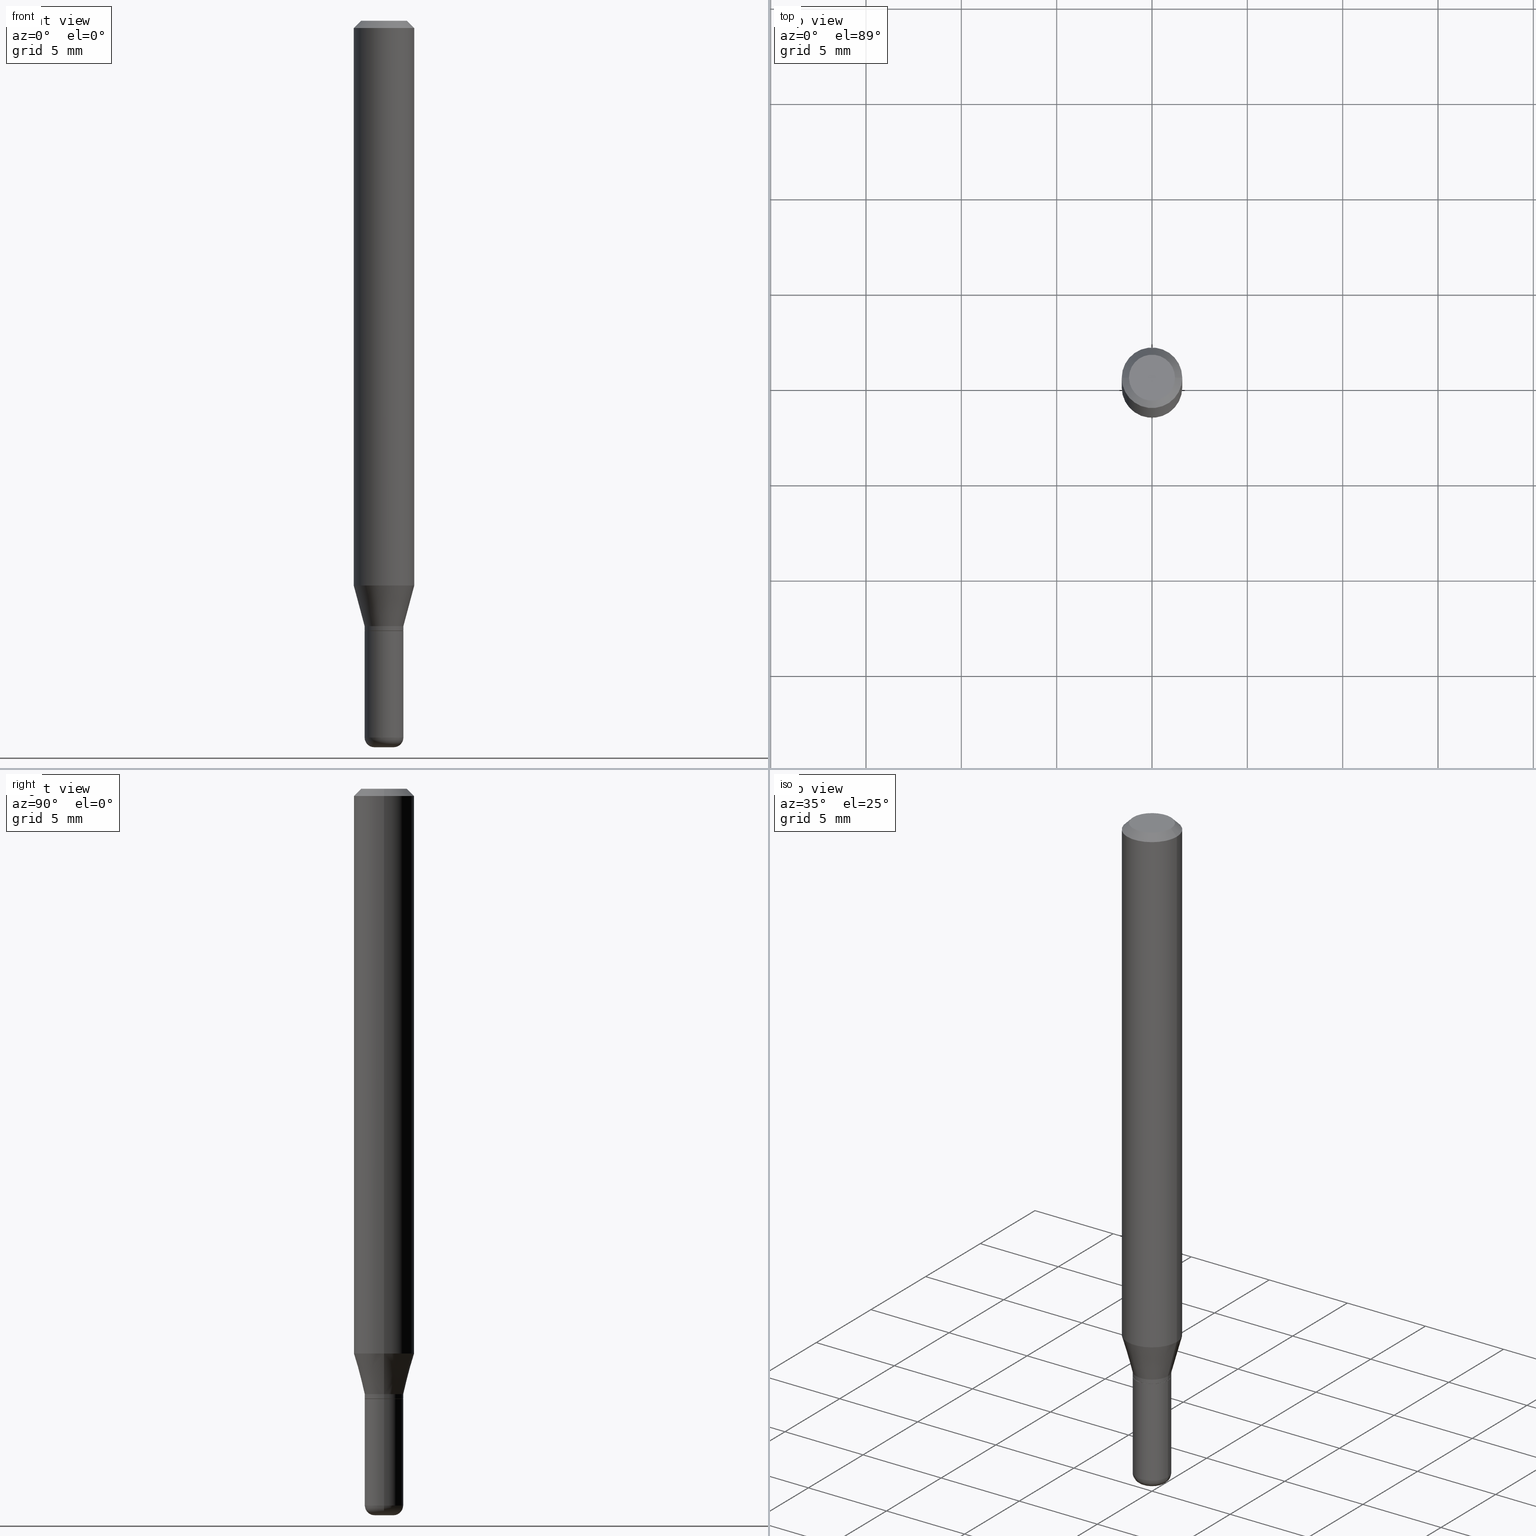
[diagram: canonical four-view strip — front | top / right | iso, engineering-drawing reading convention]
A machine part, canonical four-view strip (front | top / right | iso — engineering-drawing reading convention). The complete STEP part file that produces these views, byte-faithful:
ISO-10303-21;
HEADER;
FILE_DESCRIPTION (( 'STEP AP203' ),
    '1' );
FILE_NAME ('08566.STEP',
    '2024-02-29T19:48:53',
    ( '' ),
    ( '' ),
    'SwSTEP 2.0',
    'SolidWorks 2023',
    '' );
FILE_SCHEMA (( 'CONFIG_CONTROL_DESIGN' ));
ENDSEC;

DATA;
#1 = CARTESIAN_POINT ( 'NONE',  ( -0.04000000000000000777, 2.842170943040401296E-16, -1.967574036101962859E-30 ) ) ;
#2 = DIRECTION ( 'NONE',  ( 1.000000000000000000, 0.000000000000000000, 0.000000000000000000 ) ) ;
#3 = DIRECTION ( 'NONE',  ( -2.445468806185136597E-29, 3.491481338843145583E-15, 1.000000000000000000 ) ) ;
#4 = APPROVAL ( #107, 'UNSPECIFIED' ) ;
#5 = TOROIDAL_SURFACE ( 'NONE', #167, 0.02000000000000000042, 0.02000000000000003164 ) ;
#6 = CARTESIAN_POINT ( 'NONE',  ( 3.080067961390179490E-29, -4.397520746272941828E-15, -1.259500000000000064 ) ) ;
#7 = CARTESIAN_POINT ( 'NONE',  ( 3.668203209277704895E-29, -5.237222008264718177E-15, -1.500000000000000222 ) ) ;
#8 = VERTEX_POINT ( 'NONE', #139 ) ;
#9 = LINE ( 'NONE', #495, #205 ) ;
#10 = ORIENTED_EDGE ( 'NONE', *, *, #268, .T. ) ;
#11 = DIRECTION ( 'NONE',  ( 1.000000000000000000, -6.982962677686262766E-15, 0.000000000000000000 ) ) ;
#12 = ORIENTED_EDGE ( 'NONE', *, *, #142, .T. ) ;
#13 = EDGE_CURVE ( 'NONE', #487, #416, #460, .T. ) ;
#14 = EDGE_LOOP ( 'NONE', ( #126, #417, #117, #219 ) ) ;
#15 = CARTESIAN_POINT ( 'NONE',  ( -6.680649051745406845E-45, 9.538196290434862081E-31, 2.731847993664263218E-16 ) ) ;
#16 = DIMENSIONAL_EXPONENTS ( 1.000000000000000000, 0.000000000000000000, 0.000000000000000000, 0.000000000000000000, 0.000000000000000000, 0.000000000000000000, 0.000000000000000000 ) ;
#17 = CALENDAR_DATE ( 2024, 29, 2 ) ;
#18 = VECTOR ( 'NONE', #389, 39.37007874015748854 ) ;
#19 = CALENDAR_DATE ( 2024, 29, 2 ) ;
#20 = FACE_OUTER_BOUND ( 'NONE', #14, .T. ) ;
#21 = ORIENTED_EDGE ( 'NONE', *, *, #337, .T. ) ;
#22 = APPROVAL_DATE_TIME ( #55, #293 ) ;
#23 = CARTESIAN_POINT ( 'NONE',  ( 3.080067961390179490E-29, -4.397520746272941828E-15, -1.259500000000000064 ) ) ;
#24 = DIRECTION ( 'NONE',  ( -2.445468806185136597E-29, 3.491481338843145583E-15, 1.000000000000000000 ) ) ;
#25 = CYLINDRICAL_SURFACE ( 'NONE', #251, 0.04000000000000001471 ) ;
#26 = EDGE_LOOP ( 'NONE', ( #379, #223 ) ) ;
#27 = DIRECTION ( 'NONE',  ( -6.982962677686266711E-15, -1.000000000000000000, 3.491481338843145583E-15 ) ) ;
#28 = ORGANIZATION ( 'UNSPECIFIED', 'UNSPECIFIED', '' ) ;
#29 = EDGE_LOOP ( 'NONE', ( #42, #411, #270, #221 ) ) ;
#30 = DIRECTION ( 'NONE',  ( -2.445468806185136597E-29, 3.491481338843145583E-15, 1.000000000000000000 ) ) ;
#31 = DIRECTION ( 'NONE',  ( -2.445468806185136877E-29, 3.491481338843145188E-15, 1.000000000000000000 ) ) ;
#32 = CARTESIAN_POINT ( 'NONE',  ( 0.04000000000000001471, -4.676839253380393443E-15, -1.259500000000000064 ) ) ;
#33 = VECTOR ( 'NONE', #201, 39.37007874015748143 ) ;
#34 = CC_DESIGN_PERSON_AND_ORGANIZATION_ASSIGNMENT ( #151, #48, ( #177 ) ) ;
#35 = ADVANCED_FACE ( 'NONE', ( #98 ), #193, .T. ) ;
#36 = DIRECTION ( 'NONE',  ( 1.000000000000000000, -6.982962677686266711E-15, 4.876176775795935793E-29 ) ) ;
#37 = VERTEX_POINT ( 'NONE', #103 ) ;
#38 = EDGE_CURVE ( 'NONE', #416, #302, #231, .T. ) ;
#39 = ORIENTED_EDGE ( 'NONE', *, *, #394, .F. ) ;
#40 = AXIS2_PLACEMENT_3D ( 'NONE', #380, #83, #166 ) ;
#41 = DIRECTION ( 'NONE',  ( 1.000000000000000000, -6.982962677686266711E-15, 4.876176775795935793E-29 ) ) ;
#42 = ORIENTED_EDGE ( 'NONE', *, *, #259, .F. ) ;
#43 = FACE_OUTER_BOUND ( 'NONE', #434, .T. ) ;
#44 = CARTESIAN_POINT ( 'NONE',  ( 2.851487196488747125E-29, -4.071167994173504722E-15, -1.166028856829700366 ) ) ;
#45 = ORIENTED_EDGE ( 'NONE', *, *, #409, .T. ) ;
#46 = PERSON_AND_ORGANIZATION ( #105, #28 ) ;
#47 = ORIENTED_EDGE ( 'NONE', *, *, #101, .T. ) ;
#48 = PERSON_AND_ORGANIZATION_ROLE ( 'classification_officer' ) ;
#49 = DIRECTION ( 'NONE',  ( -2.445468806185136597E-29, 3.491481338843145583E-15, 1.000000000000000000 ) ) ;
#50 = VECTOR ( 'NONE', #54, 39.37007874015748143 ) ;
#51 = VECTOR ( 'NONE', #190, 39.37007874015748143 ) ;
#52 = CC_DESIGN_PERSON_AND_ORGANIZATION_ASSIGNMENT ( #453, #89, ( #274 ) ) ;
#53 = APPROVAL_STATUS ( 'not_yet_approved' ) ;
#54 = DIRECTION ( 'NONE',  ( -2.445468806185136877E-29, 3.491481338843145188E-15, 1.000000000000000000 ) ) ;
#55 = DATE_AND_TIME ( #19, #392 ) ;
#56 = ORIENTED_EDGE ( 'NONE', *, *, #344, .F. ) ;
#57 = DIRECTION ( 'NONE',  ( 1.000000000000000000, -6.982962677686265922E-15, 4.876176775795935793E-29 ) ) ;
#58 = PRODUCT_DEFINITION_SHAPE ( 'NONE', 'NONE',  #230 ) ;
#59 = DIRECTION ( 'NONE',  ( 1.000000000000000000, -6.982962677686266711E-15, 4.852736867747365086E-29 ) ) ;
#60 = VERTEX_POINT ( 'NONE', #395 ) ;
#61 = CIRCLE ( 'NONE', #467, 0.03950000000000001427 ) ;
#62 = LOCAL_TIME ( 14, 48, 53.00000000000000000, #343 ) ;
#63 = DIRECTION ( 'NONE',  ( -2.445468806185136877E-29, 3.491481338843145188E-15, 1.000000000000000000 ) ) ;
#64 = ORIENTED_EDGE ( 'NONE', *, *, #120, .F. ) ;
#65 = ADVANCED_FACE ( 'NONE', ( #506 ), #347, .T. ) ;
#66 = CARTESIAN_POINT ( 'NONE',  ( -0.03950000000000001427, -4.115952879143013491E-15, -1.260000000000000231 ) ) ;
#67 = APPLICATION_CONTEXT ( 'configuration controlled 3d designs of mechanical parts and assemblies' ) ;
#68 = DIRECTION ( 'NONE',  ( 1.000000000000000000, -6.982962677686266711E-15, 4.876176775795935793E-29 ) ) ;
#69 = VERTEX_POINT ( 'NONE', #66 ) ;
#70 = CARTESIAN_POINT ( 'NONE',  ( 3.668203209277632395E-31, -5.237222008264614861E-17, -0.01499999999999970281 ) ) ;
#71 = ADVANCED_BREP_SHAPE_REPRESENTATION ( '08566', ( #96, #437, #300 ), #254 ) ;
#72 = CIRCLE ( 'NONE', #491, 0.06250000000000000000 ) ;
#73 = DIRECTION ( 'NONE',  ( -2.445468806185136597E-29, 3.491481338843145583E-15, 1.000000000000000000 ) ) ;
#74 = LOCAL_TIME ( 14, 48, 53.00000000000000000, #503 ) ;
#75 = CARTESIAN_POINT ( 'NONE',  ( 3.081290695793272291E-29, -4.399266486942364120E-15, -1.260000000000000231 ) ) ;
#76 = CARTESIAN_POINT ( 'NONE',  ( 3.619293833154002365E-29, -5.167392381487854879E-15, -1.479999999999999982 ) ) ;
#77 = CARTESIAN_POINT ( 'NONE',  ( 3.081290695793272291E-29, -4.399266486942364120E-15, -1.260000000000000231 ) ) ;
#78 = EDGE_CURVE ( 'NONE', #244, #413, #92, .T. ) ;
#79 = CARTESIAN_POINT ( 'NONE',  ( -0.03950000000000001427, -4.118602106317124692E-15, -1.260000000000000231 ) ) ;
#80 = PLANE ( 'NONE',  #159 ) ;
#81 = LINE ( 'NONE', #79, #414 ) ;
#82 = CIRCLE ( 'NONE', #188, 0.04000000000000003553 ) ;
#83 = DIRECTION ( 'NONE',  ( -2.445468806185136597E-29, 3.491481338843145583E-15, 1.000000000000000000 ) ) ;
#84 = DIRECTION ( 'NONE',  ( 1.000000000000000000, -6.982962677686282488E-15, 0.000000000000000000 ) ) ;
#85 = EDGE_CURVE ( 'NONE', #413, #336, #261, .T. ) ;
#86 = ORIENTED_EDGE ( 'NONE', *, *, #85, .F. ) ;
#87 = DIRECTION ( 'NONE',  ( -1.000000000000000000, 6.982962677686266711E-15, 0.000000000000000000 ) ) ;
#88 =( NAMED_UNIT ( * ) SI_UNIT ( $, .STERADIAN. ) SOLID_ANGLE_UNIT ( ) );
#89 = PERSON_AND_ORGANIZATION_ROLE ( 'design_owner' ) ;
#90 = EDGE_LOOP ( 'NONE', ( #352, #457 ) ) ;
#91 = EDGE_LOOP ( 'NONE', ( #233, #21, #356, #359 ) ) ;
#92 = CIRCLE ( 'NONE', #326, 0.02000000000000000389 ) ;
#93 = DIRECTION ( 'NONE',  ( -2.445468806185136597E-29, 3.491481338843145583E-15, 1.000000000000000000 ) ) ;
#94 = CONICAL_SURFACE ( 'NONE', #390, 0.04000000000000000083, 0.2617993877991495189 ) ;
#95 = LOCAL_TIME ( 14, 48, 53.00000000000000000, #113 ) ;
#96 = MANIFOLD_SOLID_BREP ( 'Body-Move/Copy2[1]', #325 ) ;
#97 = DIRECTION ( 'NONE',  ( 1.000000000000000000, -6.982962677686269077E-15, 0.000000000000000000 ) ) ;
#98 = FACE_OUTER_BOUND ( 'NONE', #499, .T. ) ;
#99 = APPROVAL_DATE_TIME ( #195, #4 ) ;
#100 = FACE_OUTER_BOUND ( 'NONE', #328, .T. ) ;
#101 = EDGE_CURVE ( 'NONE', #342, #109, #241, .T. ) ;
#102 = CYLINDRICAL_SURFACE ( 'NONE', #357, 0.06250000000000000000 ) ;
#103 = CARTESIAN_POINT ( 'NONE',  ( -0.04750000000000000749, 3.578768372314221353E-16, 2.731847993664239060E-16 ) ) ;
#104 = AXIS2_PLACEMENT_3D ( 'NONE', #474, #398, #318 ) ;
#105 = PERSON ( 'UNSPECIFIED', 'UNSPECIFIED', 'UNSPECIFIED', ('UNSPECIFIED'), ('UNSPECIFIED'), ('UNSPECIFIED') ) ;
#106 = CIRCLE ( 'NONE', #514, 0.06250000000000000000 ) ;
#107 = APPROVAL_STATUS ( 'not_yet_approved' ) ;
#108 = CC_DESIGN_DATE_AND_TIME_ASSIGNMENT ( #424, #386, ( #230 ) ) ;
#109 = VERTEX_POINT ( 'NONE', #405 ) ;
#110 = PERSON_AND_ORGANIZATION ( #105, #28 ) ;
#111 = CALENDAR_DATE ( 2024, 29, 2 ) ;
#112 = FACE_OUTER_BOUND ( 'NONE', #322, .T. ) ;
#113 = COORDINATED_UNIVERSAL_TIME_OFFSET ( 5, 0, .BEHIND. ) ;
#114 = COORDINATED_UNIVERSAL_TIME_OFFSET ( 5, 0, .BEHIND. ) ;
#115 = ADVANCED_FACE ( 'NONE', ( #243 ), #289, .T. ) ;
#116 = CARTESIAN_POINT ( 'NONE',  ( -0.04000000000000001471, -4.113303651968902290E-15, -1.259500000000000064 ) ) ;
#117 = ORIENTED_EDGE ( 'NONE', *, *, #148, .T. ) ;
#118 = VECTOR ( 'NONE', #31, 39.37007874015748143 ) ;
#119 = AXIS2_PLACEMENT_3D ( 'NONE', #373, #182, #489 ) ;
#120 = EDGE_CURVE ( 'NONE', #429, #396, #363, .T. ) ;
#121 = DIRECTION ( 'NONE',  ( 0.2588190451025207950, 1.565188264969625912E-15, 0.9659258262890682012 ) ) ;
#122 = EDGE_LOOP ( 'NONE', ( #463, #10, #180, #502 ) ) ;
#123 = PLANE ( 'NONE',  #404 ) ;
#124 = ADVANCED_FACE ( 'NONE', ( #112 ), #285, .T. ) ;
#125 = DIRECTION ( 'NONE',  ( -2.445468806185136597E-29, 3.491481338843145583E-15, 1.000000000000000000 ) ) ;
#126 = ORIENTED_EDGE ( 'NONE', *, *, #368, .F. ) ;
#127 = PLANE ( 'NONE',  #245 ) ;
#128 = EDGE_CURVE ( 'NONE', #487, #211, #427, .T. ) ;
#129 = CARTESIAN_POINT ( 'NONE',  ( -0.04000000000000000083, -4.080134579249892145E-15, -1.250000000000000000 ) ) ;
#130 = CARTESIAN_POINT ( 'NONE',  ( -0.06250000000000000000, 3.840629472727455270E-16, -0.01499999999999970281 ) ) ;
#131 = CIRCLE ( 'NONE', #477, 0.04000000000000000083 ) ;
#132 = FACE_OUTER_BOUND ( 'NONE', #184, .T. ) ;
#133 = CARTESIAN_POINT ( 'NONE',  ( 3.081290695793272291E-29, -4.399266486942364120E-15, -1.260000000000000231 ) ) ;
#134 = ORIENTED_EDGE ( 'NONE', *, *, #409, .F. ) ;
#135 = VECTOR ( 'NONE', #121, 39.37007874015748854 ) ;
#136 = CIRCLE ( 'NONE', #119, 0.02000000000000003511 ) ;
#137 = AXIS2_PLACEMENT_3D ( 'NONE', #321, #510, #234 ) ;
#138 = CARTESIAN_POINT ( 'NONE',  ( 0.000000000000000000, 0.000000000000000000, 0.000000000000000000 ) ) ;
#139 = CARTESIAN_POINT ( 'NONE',  ( -0.04000000000000003553, -4.499112339911069567E-15, -1.479999999999999982 ) ) ;
#140 = AXIS2_PLACEMENT_3D ( 'NONE', #154, #314, #469 ) ;
#141 = VERTEX_POINT ( 'NONE', #507 ) ;
#142 = EDGE_CURVE ( 'NONE', #60, #37, #500, .T. ) ;
#143 = ADVANCED_FACE ( 'NONE', ( #20 ), #25, .T. ) ;
#144 = LINE ( 'NONE', #377, #51 ) ;
#145 = ORIENTED_EDGE ( 'NONE', *, *, #78, .F. ) ;
#146 = DIRECTION ( 'NONE',  ( -2.445468806185136597E-29, 3.491481338843145583E-15, 1.000000000000000000 ) ) ;
#147 = CARTESIAN_POINT ( 'NONE',  ( 0.04000000000000000777, -2.793185071074507276E-16, 1.950470710318374738E-30 ) ) ;
#148 = EDGE_CURVE ( 'NONE', #336, #403, #439, .T. ) ;
#149 = AXIS2_PLACEMENT_3D ( 'NONE', #23, #425, #354 ) ;
#150 = CONICAL_SURFACE ( 'NONE', #299, 0.03950000000000001427, 0.7853981633972775267 ) ;
#151 = PERSON_AND_ORGANIZATION ( #105, #28 ) ;
#152 = ORIENTED_EDGE ( 'NONE', *, *, #253, .T. ) ;
#153 = PERSON_AND_ORGANIZATION ( #105, #28 ) ;
#154 = CARTESIAN_POINT ( 'NONE',  ( 2.793185071074814439E-16, 0.03999999999999560157, -1.260000000000000453 ) ) ;
#155 = ORIENTED_EDGE ( 'NONE', *, *, #431, .T. ) ;
#156 = DIRECTION ( 'NONE',  ( -2.445468806185136597E-29, 3.491481338843145583E-15, 1.000000000000000000 ) ) ;
#157 = ORIENTED_EDGE ( 'NONE', *, *, #378, .T. ) ;
#158 = DIRECTION ( 'NONE',  ( -0.7071067811865479058, 2.468850131082261005E-15, -0.7071067811865471286 ) ) ;
#159 = AXIS2_PLACEMENT_3D ( 'NONE', #366, #516, #479 ) ;
#160 = ADVANCED_FACE ( 'NONE', ( #351 ), #5, .T. ) ;
#161 = CC_DESIGN_APPROVAL ( #423, ( #230 ) ) ;
#162 = DIRECTION ( 'NONE',  ( -2.445468806185136597E-29, 3.491481338843145583E-15, 1.000000000000000000 ) ) ;
#163 = ORIENTED_EDGE ( 'NONE', *, *, #128, .F. ) ;
#164 = DIRECTION ( 'NONE',  ( 1.000000000000000000, -6.982962677686266711E-15, 4.876176775795936914E-29 ) ) ;
#165 = CARTESIAN_POINT ( 'NONE',  ( 0.000000000000000000, 0.000000000000000000, 0.000000000000000000 ) ) ;
#166 = DIRECTION ( 'NONE',  ( 1.000000000000000000, -6.982962677686271444E-15, 0.000000000000000000 ) ) ;
#167 = AXIS2_PLACEMENT_3D ( 'NONE', #358, #156, #361 ) ;
#168 = LENGTH_MEASURE_WITH_UNIT ( LENGTH_MEASURE( 0.02539999999999999897 ), #408 );
#169 = EDGE_CURVE ( 'NONE', #69, #276, #175, .T. ) ;
#170 = MECHANICAL_CONTEXT ( 'NONE', #67, 'mechanical' ) ;
#171 = ORIENTED_EDGE ( 'NONE', *, *, #101, .F. ) ;
#172 = DIRECTION ( 'NONE',  ( 1.000000000000000000, -6.982962677686269077E-15, 0.000000000000000000 ) ) ;
#173 =( NAMED_UNIT ( * ) PLANE_ANGLE_UNIT ( ) SI_UNIT ( $, .RADIAN. ) );
#174 = DIRECTION ( 'NONE',  ( -2.438088387897960049E-29, 3.491481338843145188E-15, 1.000000000000000000 ) ) ;
#175 = CIRCLE ( 'NONE', #320, 0.03950000000000001427 ) ;
#176 =( CONVERSION_BASED_UNIT ( 'INCH', #168 ) LENGTH_UNIT ( ) NAMED_UNIT ( #16 ) );
#177 = SECURITY_CLASSIFICATION ( '', '', #185 ) ;
#178 = ORIENTED_EDGE ( 'NONE', *, *, #85, .T. ) ;
#179 = CARTESIAN_POINT ( 'NONE',  ( 0.03950000000000001427, -4.675093512710971939E-15, -1.260000000000000231 ) ) ;
#180 = ORIENTED_EDGE ( 'NONE', *, *, #13, .T. ) ;
#181 = CC_DESIGN_PERSON_AND_ORGANIZATION_ASSIGNMENT ( #153, #278, ( #442 ) ) ;
#182 = DIRECTION ( 'NONE',  ( 7.105427357601001859E-15, 1.000000000000000000, -3.491481338843145583E-15 ) ) ;
#183 = ORIENTED_EDGE ( 'NONE', *, *, #445, .T. ) ;
#184 = EDGE_LOOP ( 'NONE', ( #187, #298, #473, #86 ) ) ;
#185 = SECURITY_CLASSIFICATION_LEVEL ( 'unclassified' ) ;
#186 = CARTESIAN_POINT ( 'NONE',  ( 0.02000000000000000389, -5.376881261818443984E-15, -1.500000000000000222 ) ) ;
#187 = ORIENTED_EDGE ( 'NONE', *, *, #478, .T. ) ;
#188 = AXIS2_PLACEMENT_3D ( 'NONE', #248, #30, #348 ) ;
#189 = EDGE_LOOP ( 'NONE', ( #200, #145 ) ) ;
#190 = DIRECTION ( 'NONE',  ( 0.7071067811864267805, -2.468850131080992517E-15, 0.7071067811866682540 ) ) ;
#191 = ORIENTED_EDGE ( 'NONE', *, *, #317, .T. ) ;
#192 = ORIENTED_EDGE ( 'NONE', *, *, #212, .T. ) ;
#193 = CONICAL_SURFACE ( 'NONE', #355, 0.03950000000000001427, 0.7853981633972775267 ) ;
#194 = CIRCLE ( 'NONE', #448, 0.04000000000000000083 ) ;
#195 = DATE_AND_TIME ( #17, #62 ) ;
#196 = PLANE ( 'NONE',  #140 ) ;
#197 = ORIENTED_EDGE ( 'NONE', *, *, #148, .F. ) ;
#198 = LINE ( 'NONE', #130, #483 ) ;
#199 = CARTESIAN_POINT ( 'NONE',  ( -6.680649051745406845E-45, 9.538196290434862081E-31, 2.731847993664263218E-16 ) ) ;
#200 = ORIENTED_EDGE ( 'NONE', *, *, #478, .F. ) ;
#201 = DIRECTION ( 'NONE',  ( 0.7071067811865479058, -7.319954787623257623E-15, -0.7071067811865471286 ) ) ;
#202 = PRODUCT_RELATED_PRODUCT_CATEGORY ( 'detail', '', ( #274 ) ) ;
#203 = CARTESIAN_POINT ( 'NONE',  ( 0.02000000000000000042, -5.307051635041580686E-15, -1.479999999999999982 ) ) ;
#204 = CLOSED_SHELL ( 'NONE', ( #486, #35, #239, #124, #481, #115, #393, #340, #426, #418, #384, #260 ) ) ;
#205 = VECTOR ( 'NONE', #422, 39.37007874015748143 ) ;
#206 = ADVANCED_FACE ( 'NONE', ( #246 ), #196, .F. ) ;
#207 = DIRECTION ( 'NONE',  ( 1.000000000000000000, -6.982962677686269077E-15, 0.000000000000000000 ) ) ;
#208 = CARTESIAN_POINT ( 'NONE',  ( 0.04000000000000001471, -2.793185071074507769E-16, 1.950470710318375438E-30 ) ) ;
#209 = CONICAL_SURFACE ( 'NONE', #456, 0.06250000000000000000, 0.7853981633974488341 ) ;
#210 = APPROVAL_PERSON_ORGANIZATION ( #110, #423, #492 ) ;
#211 = VERTEX_POINT ( 'NONE', #116 ) ;
#212 = EDGE_CURVE ( 'NONE', #109, #429, #280, .T. ) ;
#213 = CARTESIAN_POINT ( 'NONE',  ( 3.056836007731421306E-29, -4.364351673553932471E-15, -1.250000000000000000 ) ) ;
#214 = DIRECTION ( 'NONE',  ( -2.445468806185136597E-29, 3.491481338843145583E-15, 1.000000000000000000 ) ) ;
#215 = ORIENTED_EDGE ( 'NONE', *, *, #259, .T. ) ;
#216 = AXIS2_PLACEMENT_3D ( 'NONE', #203, #27, #433 ) ;
#217 = CIRCLE ( 'NONE', #273, 0.06250000000000000000 ) ;
#218 = DIRECTION ( 'NONE',  ( -2.445468806185136597E-29, 3.491481338843145583E-15, 1.000000000000000000 ) ) ;
#219 = ORIENTED_EDGE ( 'NONE', *, *, #440, .F. ) ;
#220 = CARTESIAN_POINT ( 'NONE',  ( -0.04000000000000000083, -3.853606681786667125E-15, -1.250000000000000000 ) ) ;
#221 = ORIENTED_EDGE ( 'NONE', *, *, #268, .F. ) ;
#222 = DIRECTION ( 'NONE',  ( -2.445468806185136597E-29, 3.491481338843145583E-15, 1.000000000000000000 ) ) ;
#223 = ORIENTED_EDGE ( 'NONE', *, *, #169, .F. ) ;
#224 = CARTESIAN_POINT ( 'NONE',  ( -0.04000000000000001471, 2.842170943040401789E-16, -1.967574036101963210E-30 ) ) ;
#225 = ORIENTED_EDGE ( 'NONE', *, *, #78, .T. ) ;
#226 = AXIS2_PLACEMENT_3D ( 'NONE', #332, #146, #309 ) ;
#227 = CC_DESIGN_APPROVAL ( #293, ( #177 ) ) ;
#228 = APPROVAL_DATE_TIME ( #306, #423 ) ;
#229 = SHAPE_DEFINITION_REPRESENTATION ( #58, #71 ) ;
#230 = PRODUCT_DEFINITION ( 'UNKNOWN', '', #442, #518 ) ;
#231 = LINE ( 'NONE', #385, #135 ) ;
#232 = APPROVAL_ROLE ( '' ) ;
#233 = ORIENTED_EDGE ( 'NONE', *, *, #142, .F. ) ;
#234 = DIRECTION ( 'NONE',  ( 1.000000000000000000, -6.982962677686271444E-15, 0.000000000000000000 ) ) ;
#235 = AXIS2_PLACEMENT_3D ( 'NONE', #360, #323, #475 ) ;
#236 = CC_DESIGN_APPROVAL ( #4, ( #442 ) ) ;
#237 = FACE_OUTER_BOUND ( 'NONE', #91, .T. ) ;
#238 = EDGE_LOOP ( 'NONE', ( #313, #304, #288, #197 ) ) ;
#239 = ADVANCED_FACE ( 'NONE', ( #237 ), #209, .T. ) ;
#240 = UNCERTAINTY_MEASURE_WITH_UNIT (LENGTH_MEASURE( 1.000000000000000082E-05 ), #176, 'distance_accuracy_value', 'NONE');
#241 = LINE ( 'NONE', #129, #18 ) ;
#242 = EDGE_LOOP ( 'NONE', ( #382, #183, #391, #307 ) ) ;
#243 = FACE_OUTER_BOUND ( 'NONE', #493, .T. ) ;
#244 = VERTEX_POINT ( 'NONE', #454 ) ;
#245 = AXIS2_PLACEMENT_3D ( 'NONE', #438, #444, #430 ) ;
#246 = FACE_OUTER_BOUND ( 'NONE', #90, .T. ) ;
#247 = DIRECTION ( 'NONE',  ( -2.445468806185136597E-29, 3.491481338843145583E-15, 1.000000000000000000 ) ) ;
#248 = CARTESIAN_POINT ( 'NONE',  ( 3.619293833154002365E-29, -5.167392381487854879E-15, -1.479999999999999982 ) ) ;
#249 = DIRECTION ( 'NONE',  ( 1.000000000000000000, -6.982962677686259611E-15, 0.000000000000000000 ) ) ;
#250 = DIRECTION ( 'NONE',  ( 1.000000000000000000, -6.982962677686259611E-15, 0.000000000000000000 ) ) ;
#251 = AXIS2_PLACEMENT_3D ( 'NONE', #287, #472, #164 ) ;
#252 = AXIS2_PLACEMENT_3D ( 'NONE', #7, #93, #84 ) ;
#253 = EDGE_CURVE ( 'NONE', #276, #69, #61, .T. ) ;
#254 =( GEOMETRIC_REPRESENTATION_CONTEXT ( 3 ) GLOBAL_UNCERTAINTY_ASSIGNED_CONTEXT ( ( #240 ) ) GLOBAL_UNIT_ASSIGNED_CONTEXT ( ( #176, #173, #88 ) ) REPRESENTATION_CONTEXT ( 'NONE', 'WORKASPACE' ) );
#255 = DIRECTION ( 'NONE',  ( 0.000000000000000000, 0.000000000000000000, 1.000000000000000000 ) ) ;
#256 = ORIENTED_EDGE ( 'NONE', *, *, #120, .T. ) ;
#257 = APPLICATION_PROTOCOL_DEFINITION ( 'international standard', 'config_control_design', 1994, #67 ) ;
#258 = FACE_OUTER_BOUND ( 'NONE', #496, .T. ) ;
#259 = EDGE_CURVE ( 'NONE', #69, #211, #81, .T. ) ;
#260 = ADVANCED_FACE ( 'NONE', ( #412 ), #476, .T. ) ;
#261 = CIRCLE ( 'NONE', #216, 0.02000000000000003511 ) ;
#262 = VECTOR ( 'NONE', #485, 39.37007874015748143 ) ;
#263 = CARTESIAN_POINT ( 'NONE',  ( 3.081290695793272291E-29, -4.399266486942364120E-15, -1.260000000000000231 ) ) ;
#264 = ORIENTED_EDGE ( 'NONE', *, *, #376, .F. ) ;
#265 = CARTESIAN_POINT ( 'NONE',  ( 0.06250000000000000000, -4.888073874380378612E-16, -0.01499999999999970281 ) ) ;
#266 = CARTESIAN_POINT ( 'NONE',  ( 3.081290695793272291E-29, -4.399266486942364120E-15, -1.260000000000000231 ) ) ;
#267 = DATE_AND_TIME ( #111, #494 ) ;
#268 = EDGE_CURVE ( 'NONE', #211, #487, #501, .T. ) ;
#269 = FACE_OUTER_BOUND ( 'NONE', #450, .T. ) ;
#270 = ORIENTED_EDGE ( 'NONE', *, *, #372, .T. ) ;
#271 = PERSON_AND_ORGANIZATION ( #105, #28 ) ;
#272 = DIRECTION ( 'NONE',  ( -2.445468806185136597E-29, 3.491481338843145583E-15, 1.000000000000000000 ) ) ;
#273 = AXIS2_PLACEMENT_3D ( 'NONE', #459, #335, #498 ) ;
#274 = PRODUCT ( '08566', '08566', '', ( #170 ) ) ;
#275 = DATE_TIME_ROLE ( 'classification_date' ) ;
#276 = VERTEX_POINT ( 'NONE', #179 ) ;
#277 = CARTESIAN_POINT ( 'NONE',  ( 3.668203209277704895E-29, -5.237222008264718177E-15, -1.500000000000000222 ) ) ;
#278 = PERSON_AND_ORGANIZATION_ROLE ( 'creator' ) ;
#279 = ADVANCED_FACE ( 'NONE', ( #132 ), #312, .T. ) ;
#280 = LINE ( 'NONE', #428, #388 ) ;
#281 = AXIS2_PLACEMENT_3D ( 'NONE', #199, #125, #59 ) ;
#282 = CIRCLE ( 'NONE', #235, 0.04000000000000003553 ) ;
#283 = DIRECTION ( 'NONE',  ( 1.000000000000000000, -6.982962677686266711E-15, 4.876176775795936914E-29 ) ) ;
#284 = ADVANCED_FACE ( 'NONE', ( #443 ), #127, .F. ) ;
#285 = CYLINDRICAL_SURFACE ( 'NONE', #490, 0.06250000000000000000 ) ;
#286 = ORIENTED_EDGE ( 'NONE', *, *, #337, .F. ) ;
#287 = CARTESIAN_POINT ( 'NONE',  ( 0.000000000000000000, 0.000000000000000000, 0.000000000000000000 ) ) ;
#288 = ORIENTED_EDGE ( 'NONE', *, *, #297, .F. ) ;
#289 = CONICAL_SURFACE ( 'NONE', #137, 0.04000000000000000083, 0.2617993877991495189 ) ;
#290 = CIRCLE ( 'NONE', #226, 0.04000000000000000083 ) ;
#291 = APPROVAL_PERSON_ORGANIZATION ( #338, #4, #232 ) ;
#292 = CARTESIAN_POINT ( 'NONE',  ( 0.04000000000000000083, -4.643670180661383298E-15, -1.250000000000000000 ) ) ;
#293 = APPROVAL ( #53, 'UNSPECIFIED' ) ;
#294 = EDGE_CURVE ( 'NONE', #396, #429, #72, .T. ) ;
#295 = AXIS2_PLACEMENT_3D ( 'NONE', #6, #482, #406 ) ;
#296 = CARTESIAN_POINT ( 'NONE',  ( 0.000000000000000000, 0.000000000000000000, 0.000000000000000000 ) ) ;
#297 = EDGE_CURVE ( 'NONE', #403, #141, #194, .T. ) ;
#298 = ORIENTED_EDGE ( 'NONE', *, *, #394, .T. ) ;
#299 = AXIS2_PLACEMENT_3D ( 'NONE', #263, #415, #97 ) ;
#300 = AXIS2_PLACEMENT_3D ( 'NONE', #484, #255, #2 ) ;
#301 = DIRECTION ( 'NONE',  ( 2.445468806185136597E-29, -3.491481338843145583E-15, -1.000000000000000000 ) ) ;
#302 = VERTEX_POINT ( 'NONE', #435 ) ;
#303 = CALENDAR_DATE ( 2024, 29, 2 ) ;
#304 = ORIENTED_EDGE ( 'NONE', *, *, #368, .T. ) ;
#305 = FACE_OUTER_BOUND ( 'NONE', #29, .T. ) ;
#306 = DATE_AND_TIME ( #303, #74 ) ;
#307 = ORIENTED_EDGE ( 'NONE', *, *, #13, .F. ) ;
#308 = EDGE_CURVE ( 'NONE', #336, #8, #282, .T. ) ;
#309 = DIRECTION ( 'NONE',  ( 1.000000000000000000, -6.982962677686271444E-15, 0.000000000000000000 ) ) ;
#310 = DIRECTION ( 'NONE',  ( -2.445468806185136597E-29, 3.491481338843145583E-15, 1.000000000000000000 ) ) ;
#311 = CALENDAR_DATE ( 2024, 29, 2 ) ;
#312 = TOROIDAL_SURFACE ( 'NONE', #364, 0.02000000000000000042, 0.02000000000000003164 ) ;
#313 = ORIENTED_EDGE ( 'NONE', *, *, #308, .T. ) ;
#314 = DIRECTION ( 'NONE',  ( 2.438088387897960049E-29, -3.491481338843145188E-15, -1.000000000000000000 ) ) ;
#315 = ORIENTED_EDGE ( 'NONE', *, *, #38, .T. ) ;
#316 = LINE ( 'NONE', #397, #33 ) ;
#317 = EDGE_CURVE ( 'NONE', #37, #429, #198, .T. ) ;
#318 = DIRECTION ( 'NONE',  ( 1.000000000000000000, -6.982962677686266711E-15, 0.000000000000000000 ) ) ;
#319 = ORIENTED_EDGE ( 'NONE', *, *, #376, .T. ) ;
#320 = AXIS2_PLACEMENT_3D ( 'NONE', #511, #73, #207 ) ;
#321 = CARTESIAN_POINT ( 'NONE',  ( 3.056836007731421306E-29, -4.364351673553932471E-15, -1.250000000000000000 ) ) ;
#322 = EDGE_LOOP ( 'NONE', ( #319, #192, #371, #56 ) ) ;
#323 = DIRECTION ( 'NONE',  ( -2.445468806185136597E-29, 3.491481338843145583E-15, 1.000000000000000000 ) ) ;
#324 = DIRECTION ( 'NONE',  ( -2.445468806185136597E-29, 3.491481338843145583E-15, 1.000000000000000000 ) ) ;
#325 = CLOSED_SHELL ( 'NONE', ( #279, #65, #206, #143, #160, #284 ) ) ;
#326 = AXIS2_PLACEMENT_3D ( 'NONE', #277, #401, #436 ) ;
#327 = VECTOR ( 'NONE', #462, 39.37007874015748143 ) ;
#328 = EDGE_LOOP ( 'NONE', ( #333, #45, #480, #64 ) ) ;
#329 = DIRECTION ( 'NONE',  ( -0.7071067811864267805, 7.493145998869918709E-15, 0.7071067811866682540 ) ) ;
#330 = AXIS2_PLACEMENT_3D ( 'NONE', #15, #49, #381 ) ;
#331 = DIRECTION ( 'NONE',  ( 2.445468806185136597E-29, -3.491481338843145583E-15, -1.000000000000000000 ) ) ;
#332 = CARTESIAN_POINT ( 'NONE',  ( 3.056836007731421306E-29, -4.364351673553932471E-15, -1.250000000000000000 ) ) ;
#333 = ORIENTED_EDGE ( 'NONE', *, *, #212, .F. ) ;
#334 = CARTESIAN_POINT ( 'NONE',  ( -0.06250000000000000000, -1.617680897278012693E-15, -0.01499999999999970281 ) ) ;
#335 = DIRECTION ( 'NONE',  ( -2.445468806185136597E-29, 3.491481338843145583E-15, 1.000000000000000000 ) ) ;
#336 = VERTEX_POINT ( 'NONE', #505 ) ;
#337 = EDGE_CURVE ( 'NONE', #60, #396, #316, .T. ) ;
#338 = PERSON_AND_ORGANIZATION ( #105, #28 ) ;
#339 = ORIENTED_EDGE ( 'NONE', *, *, #372, .F. ) ;
#340 = ADVANCED_FACE ( 'NONE', ( #269 ), #370, .T. ) ;
#341 = LINE ( 'NONE', #224, #327 ) ;
#342 = VERTEX_POINT ( 'NONE', #220 ) ;
#343 = COORDINATED_UNIVERSAL_TIME_OFFSET ( 5, 0, .BEHIND. ) ;
#344 = EDGE_CURVE ( 'NONE', #302, #396, #9, .T. ) ;
#345 = EDGE_LOOP ( 'NONE', ( #39, #225, #178, #374 ) ) ;
#346 = AXIS2_PLACEMENT_3D ( 'NONE', #451, #247, #36 ) ;
#347 = CYLINDRICAL_SURFACE ( 'NONE', #402, 0.04000000000000001471 ) ;
#348 = DIRECTION ( 'NONE',  ( 1.000000000000000000, -6.982962677686277755E-15, 0.000000000000000000 ) ) ;
#349 = DIRECTION ( 'NONE',  ( 1.000000000000000000, -6.982962677686266711E-15, 0.000000000000000000 ) ) ;
#350 = FACE_OUTER_BOUND ( 'NONE', #26, .T. ) ;
#351 = FACE_OUTER_BOUND ( 'NONE', #345, .T. ) ;
#352 = ORIENTED_EDGE ( 'NONE', *, *, #297, .T. ) ;
#353 = DIRECTION ( 'NONE',  ( -2.445468806185136597E-29, 3.491481338843145583E-15, 1.000000000000000000 ) ) ;
#354 = DIRECTION ( 'NONE',  ( 1.000000000000000000, -6.982962677686257244E-15, 0.000000000000000000 ) ) ;
#355 = AXIS2_PLACEMENT_3D ( 'NONE', #266, #310, #465 ) ;
#356 = ORIENTED_EDGE ( 'NONE', *, *, #294, .T. ) ;
#357 = AXIS2_PLACEMENT_3D ( 'NONE', #138, #272, #41 ) ;
#358 = CARTESIAN_POINT ( 'NONE',  ( 3.619293833154002365E-29, -5.167392381487854879E-15, -1.479999999999999982 ) ) ;
#359 = ORIENTED_EDGE ( 'NONE', *, *, #317, .F. ) ;
#360 = CARTESIAN_POINT ( 'NONE',  ( 3.619293833154002365E-29, -5.167392381487854879E-15, -1.479999999999999982 ) ) ;
#361 = DIRECTION ( 'NONE',  ( 1.000000000000000000, -6.982962677686278543E-15, 4.883557194083116264E-29 ) ) ;
#362 = APPLICATION_CONTEXT ( 'configuration controlled 3d designs of mechanical parts and assemblies' ) ;
#363 = CIRCLE ( 'NONE', #104, 0.06250000000000000000 ) ;
#364 = AXIS2_PLACEMENT_3D ( 'NONE', #76, #512, #509 ) ;
#365 = AXIS2_PLACEMENT_3D ( 'NONE', #296, #3, #447 ) ;
#366 = CARTESIAN_POINT ( 'NONE',  ( 3.316907271900976589E-16, 0.04750000000000000749, -2.925296391183627249E-17 ) ) ;
#367 = LINE ( 'NONE', #1, #262 ) ;
#368 = EDGE_CURVE ( 'NONE', #8, #141, #341, .T. ) ;
#369 = CARTESIAN_POINT ( 'NONE',  ( 3.668203209277632395E-31, -5.237222008264614861E-17, -0.01499999999999970281 ) ) ;
#370 = CONICAL_SURFACE ( 'NONE', #441, 0.06250000000000000000, 0.7853981633974488341 ) ;
#371 = ORIENTED_EDGE ( 'NONE', *, *, #294, .F. ) ;
#372 = EDGE_CURVE ( 'NONE', #276, #487, #144, .T. ) ;
#373 = CARTESIAN_POINT ( 'NONE',  ( -0.02000000000000000042, -5.025283834335834715E-15, -1.479999999999999982 ) ) ;
#374 = ORIENTED_EDGE ( 'NONE', *, *, #432, .F. ) ;
#375 = APPROVAL_STATUS ( 'not_yet_approved' ) ;
#376 = EDGE_CURVE ( 'NONE', #302, #109, #217, .T. ) ;
#377 = CARTESIAN_POINT ( 'NONE',  ( 0.03950000000000001427, -4.675093512710971939E-15, -1.260000000000000231 ) ) ;
#378 = EDGE_CURVE ( 'NONE', #416, #342, #290, .T. ) ;
#379 = ORIENTED_EDGE ( 'NONE', *, *, #253, .F. ) ;
#380 = CARTESIAN_POINT ( 'NONE',  ( 3.056836007731421306E-29, -4.364351673553932471E-15, -1.250000000000000000 ) ) ;
#381 = DIRECTION ( 'NONE',  ( 1.000000000000000000, -6.982962677686266711E-15, 4.852736867747365086E-29 ) ) ;
#382 = ORIENTED_EDGE ( 'NONE', *, *, #128, .T. ) ;
#383 = PERSON_AND_ORGANIZATION ( #105, #28 ) ;
#384 = ADVANCED_FACE ( 'NONE', ( #305 ), #150, .T. ) ;
#385 = CARTESIAN_POINT ( 'NONE',  ( 0.04000000000000000083, -4.643670180661383298E-15, -1.250000000000000000 ) ) ;
#386 = DATE_TIME_ROLE ( 'creation_date' ) ;
#387 = APPROVAL_ROLE ( '' ) ;
#388 = VECTOR ( 'NONE', #63, 39.37007874015748143 ) ;
#389 = DIRECTION ( 'NONE',  ( -0.2588190451025207950, 5.211531920934546309E-15, 0.9659258262890682012 ) ) ;
#390 = AXIS2_PLACEMENT_3D ( 'NONE', #213, #214, #455 ) ;
#391 = ORIENTED_EDGE ( 'NONE', *, *, #378, .F. ) ;
#392 = LOCAL_TIME ( 14, 48, 53.00000000000000000, #114 ) ;
#393 = ADVANCED_FACE ( 'NONE', ( #100 ), #102, .T. ) ;
#394 = EDGE_CURVE ( 'NONE', #244, #8, #136, .T. ) ;
#395 = CARTESIAN_POINT ( 'NONE',  ( 0.04750000000000000749, -4.035134999187568762E-16, 2.731847993664288856E-16 ) ) ;
#396 = VERTEX_POINT ( 'NONE', #265 ) ;
#397 = CARTESIAN_POINT ( 'NONE',  ( 0.06250000000000000000, -4.811533449433669144E-16, -0.01499999999999970281 ) ) ;
#398 = DIRECTION ( 'NONE',  ( -2.445468806185136597E-29, 3.491481338843145583E-15, 1.000000000000000000 ) ) ;
#399 = EDGE_CURVE ( 'NONE', #37, #60, #421, .T. ) ;
#400 = CARTESIAN_POINT ( 'NONE',  ( 3.081290695793272291E-29, -4.399266486942364120E-15, -1.260000000000000231 ) ) ;
#401 = DIRECTION ( 'NONE',  ( -2.445468806185136597E-29, 3.491481338843145583E-15, 1.000000000000000000 ) ) ;
#402 = AXIS2_PLACEMENT_3D ( 'NONE', #504, #324, #283 ) ;
#403 = VERTEX_POINT ( 'NONE', #419 ) ;
#404 = AXIS2_PLACEMENT_3D ( 'NONE', #400, #174, #57 ) ;
#405 = CARTESIAN_POINT ( 'NONE',  ( -0.06250000000000000000, -3.627078784323442106E-15, -1.166028856829700366 ) ) ;
#406 = DIRECTION ( 'NONE',  ( 1.000000000000000000, -6.982962677686257244E-15, 0.000000000000000000 ) ) ;
#407 = CIRCLE ( 'NONE', #40, 0.04000000000000000083 ) ;
#408 =( LENGTH_UNIT ( ) NAMED_UNIT ( * ) SI_UNIT ( $, .METRE. ) );
#409 = EDGE_CURVE ( 'NONE', #109, #302, #106, .T. ) ;
#410 = ORIENTED_EDGE ( 'NONE', *, *, #399, .F. ) ;
#411 = ORIENTED_EDGE ( 'NONE', *, *, #169, .T. ) ;
#412 = FACE_OUTER_BOUND ( 'NONE', #122, .T. ) ;
#413 = VERTEX_POINT ( 'NONE', #186 ) ;
#414 = VECTOR ( 'NONE', #329, 39.37007874015748143 ) ;
#415 = DIRECTION ( 'NONE',  ( -2.445468806185136597E-29, 3.491481338843145583E-15, 1.000000000000000000 ) ) ;
#416 = VERTEX_POINT ( 'NONE', #292 ) ;
#417 = ORIENTED_EDGE ( 'NONE', *, *, #432, .T. ) ;
#418 = ADVANCED_FACE ( 'NONE', ( #350 ), #123, .F. ) ;
#419 = CARTESIAN_POINT ( 'NONE',  ( 0.04000000000000000083, -4.678584994049814947E-15, -1.260000000000000231 ) ) ;
#420 = CARTESIAN_POINT ( 'NONE',  ( 3.668203209277632395E-31, -5.237222008264614861E-17, -0.01499999999999970281 ) ) ;
#421 = CIRCLE ( 'NONE', #330, 0.04750000000000000749 ) ;
#422 = DIRECTION ( 'NONE',  ( -2.445468806185136877E-29, 3.491481338843145188E-15, 1.000000000000000000 ) ) ;
#423 = APPROVAL ( #375, 'UNSPECIFIED' ) ;
#424 = DATE_AND_TIME ( #311, #95 ) ;
#425 = DIRECTION ( 'NONE',  ( -2.445468806185136597E-29, 3.491481338843145583E-15, 1.000000000000000000 ) ) ;
#426 = ADVANCED_FACE ( 'NONE', ( #43 ), #80, .F. ) ;
#427 = CIRCLE ( 'NONE', #149, 0.04000000000000001471 ) ;
#428 = CARTESIAN_POINT ( 'NONE',  ( -0.06250000000000000000, 4.440892098500626162E-16, -3.074334431409316114E-30 ) ) ;
#429 = VERTEX_POINT ( 'NONE', #334 ) ;
#430 = DIRECTION ( 'NONE',  ( 1.000000000000000000, -6.982962677686265922E-15, 4.876176775795935793E-29 ) ) ;
#431 = EDGE_CURVE ( 'NONE', #342, #416, #407, .T. ) ;
#432 = EDGE_CURVE ( 'NONE', #8, #336, #82, .T. ) ;
#433 = DIRECTION ( 'NONE',  ( 1.000000000000000000, -6.982962677686272233E-15, 0.000000000000000000 ) ) ;
#434 = EDGE_LOOP ( 'NONE', ( #508, #12 ) ) ;
#435 = CARTESIAN_POINT ( 'NONE',  ( 0.06250000000000000000, -4.507603161528897181E-15, -1.166028856829700366 ) ) ;
#436 = DIRECTION ( 'NONE',  ( 1.000000000000000000, -6.982962677686282488E-15, 0.000000000000000000 ) ) ;
#437 = MANIFOLD_SOLID_BREP ( 'Body-Move/Copy2[2]', #204 ) ;
#438 = CARTESIAN_POINT ( 'NONE',  ( 3.582686580359766038E-29, -5.359686688179453325E-15, -1.500000000000000222 ) ) ;
#439 = LINE ( 'NONE', #208, #118 ) ;
#440 = EDGE_CURVE ( 'NONE', #141, #403, #131, .T. ) ;
#441 = AXIS2_PLACEMENT_3D ( 'NONE', #420, #301, #464 ) ;
#442 = PRODUCT_DEFINITION_FORMATION_WITH_SPECIFIED_SOURCE ( 'ANY', '', #274, .NOT_KNOWN. ) ;
#443 = FACE_OUTER_BOUND ( 'NONE', #189, .T. ) ;
#444 = DIRECTION ( 'NONE',  ( -2.438088387897960049E-29, 3.491481338843145188E-15, 1.000000000000000000 ) ) ;
#445 = EDGE_CURVE ( 'NONE', #211, #342, #367, .T. ) ;
#446 = DIRECTION ( 'NONE',  ( -2.445468806185136597E-29, 3.491481338843145583E-15, 1.000000000000000000 ) ) ;
#447 = DIRECTION ( 'NONE',  ( 1.000000000000000000, -6.982962677686266711E-15, 4.876176775795935793E-29 ) ) ;
#448 = AXIS2_PLACEMENT_3D ( 'NONE', #77, #24, #249 ) ;
#449 = APPROVAL_PERSON_ORGANIZATION ( #271, #293, #387 ) ;
#450 = EDGE_LOOP ( 'NONE', ( #286, #410, #191, #256 ) ) ;
#451 = CARTESIAN_POINT ( 'NONE',  ( 0.000000000000000000, 0.000000000000000000, 0.000000000000000000 ) ) ;
#452 = CC_DESIGN_PERSON_AND_ORGANIZATION_ASSIGNMENT ( #46, #458, ( #442 ) ) ;
#453 = PERSON_AND_ORGANIZATION ( #105, #28 ) ;
#454 = CARTESIAN_POINT ( 'NONE',  ( -0.02000000000000000389, -4.989144374148256283E-15, -1.500000000000000222 ) ) ;
#455 = DIRECTION ( 'NONE',  ( 1.000000000000000000, -6.982962677686271444E-15, 0.000000000000000000 ) ) ;
#456 = AXIS2_PLACEMENT_3D ( 'NONE', #369, #331, #87 ) ;
#457 = ORIENTED_EDGE ( 'NONE', *, *, #440, .T. ) ;
#458 = PERSON_AND_ORGANIZATION_ROLE ( 'design_supplier' ) ;
#459 = CARTESIAN_POINT ( 'NONE',  ( 2.851487196488747125E-29, -4.071167994173504722E-15, -1.166028856829700366 ) ) ;
#460 = LINE ( 'NONE', #147, #50 ) ;
#461 = PERSON_AND_ORGANIZATION_ROLE ( 'creator' ) ;
#462 = DIRECTION ( 'NONE',  ( -2.445468806185136877E-29, 3.491481338843145188E-15, 1.000000000000000000 ) ) ;
#463 = ORIENTED_EDGE ( 'NONE', *, *, #445, .F. ) ;
#464 = DIRECTION ( 'NONE',  ( -1.000000000000000000, 6.982962677686266711E-15, 0.000000000000000000 ) ) ;
#465 = DIRECTION ( 'NONE',  ( 1.000000000000000000, -6.982962677686269077E-15, 0.000000000000000000 ) ) ;
#466 = APPLICATION_PROTOCOL_DEFINITION ( 'international standard', 'config_control_design', 1994, #362 ) ;
#467 = AXIS2_PLACEMENT_3D ( 'NONE', #133, #446, #172 ) ;
#468 = COORDINATED_UNIVERSAL_TIME_OFFSET ( 5, 0, .BEHIND. ) ;
#469 = DIRECTION ( 'NONE',  ( -1.000000000000000000, 6.982962677686265922E-15, -4.876176775795935793E-29 ) ) ;
#470 = CC_DESIGN_DATE_AND_TIME_ASSIGNMENT ( #267, #275, ( #177 ) ) ;
#471 = CIRCLE ( 'NONE', #252, 0.02000000000000000389 ) ;
#472 = DIRECTION ( 'NONE',  ( -2.445468806185136597E-29, 3.491481338843145583E-15, 1.000000000000000000 ) ) ;
#473 = ORIENTED_EDGE ( 'NONE', *, *, #308, .F. ) ;
#474 = CARTESIAN_POINT ( 'NONE',  ( 3.668203209277632395E-31, -5.237222008264614861E-17, -0.01499999999999970281 ) ) ;
#475 = DIRECTION ( 'NONE',  ( 1.000000000000000000, -6.982962677686277755E-15, 0.000000000000000000 ) ) ;
#476 = CYLINDRICAL_SURFACE ( 'NONE', #346, 0.04000000000000000777 ) ;
#477 = AXIS2_PLACEMENT_3D ( 'NONE', #75, #218, #250 ) ;
#478 = EDGE_CURVE ( 'NONE', #413, #244, #471, .T. ) ;
#479 = DIRECTION ( 'NONE',  ( -1.000000000000000000, 6.982962677686265922E-15, -4.876176775795935793E-29 ) ) ;
#480 = ORIENTED_EDGE ( 'NONE', *, *, #344, .T. ) ;
#481 = ADVANCED_FACE ( 'NONE', ( #258 ), #94, .T. ) ;
#482 = DIRECTION ( 'NONE',  ( -2.445468806185136597E-29, 3.491481338843145583E-15, 1.000000000000000000 ) ) ;
#483 = VECTOR ( 'NONE', #158, 39.37007874015748143 ) ;
#484 = CARTESIAN_POINT ( 'NONE',  ( 0.000000000000000000, 0.000000000000000000, 0.000000000000000000 ) ) ;
#485 = DIRECTION ( 'NONE',  ( -2.445468806185136877E-29, 3.491481338843145188E-15, 1.000000000000000000 ) ) ;
#486 = ADVANCED_FACE ( 'NONE', ( #517 ), #488, .T. ) ;
#487 = VERTEX_POINT ( 'NONE', #32 ) ;
#488 = CYLINDRICAL_SURFACE ( 'NONE', #365, 0.04000000000000000777 ) ;
#489 = DIRECTION ( 'NONE',  ( -1.000000000000000000, 7.105427357601009747E-15, 0.000000000000000000 ) ) ;
#490 = AXIS2_PLACEMENT_3D ( 'NONE', #165, #162, #68 ) ;
#491 = AXIS2_PLACEMENT_3D ( 'NONE', #70, #353, #349 ) ;
#492 = APPROVAL_ROLE ( '' ) ;
#493 = EDGE_LOOP ( 'NONE', ( #171, #155, #315, #134 ) ) ;
#494 = LOCAL_TIME ( 14, 48, 53.00000000000000000, #468 ) ;
#495 = CARTESIAN_POINT ( 'NONE',  ( 0.06250000000000000000, -4.364351673553916694E-16, 3.047610484872459871E-30 ) ) ;
#496 = EDGE_LOOP ( 'NONE', ( #157, #47, #264, #497 ) ) ;
#497 = ORIENTED_EDGE ( 'NONE', *, *, #38, .F. ) ;
#498 = DIRECTION ( 'NONE',  ( 1.000000000000000000, -6.982962677686262766E-15, 0.000000000000000000 ) ) ;
#499 = EDGE_LOOP ( 'NONE', ( #152, #215, #163, #339 ) ) ;
#500 = CIRCLE ( 'NONE', #281, 0.04750000000000000749 ) ;
#501 = CIRCLE ( 'NONE', #295, 0.04000000000000001471 ) ;
#502 = ORIENTED_EDGE ( 'NONE', *, *, #431, .F. ) ;
#503 = COORDINATED_UNIVERSAL_TIME_OFFSET ( 5, 0, .BEHIND. ) ;
#504 = CARTESIAN_POINT ( 'NONE',  ( 0.000000000000000000, 0.000000000000000000, 0.000000000000000000 ) ) ;
#505 = CARTESIAN_POINT ( 'NONE',  ( 0.04000000000000003553, -5.446710888595306494E-15, -1.479999999999999982 ) ) ;
#506 = FACE_OUTER_BOUND ( 'NONE', #238, .T. ) ;
#507 = CARTESIAN_POINT ( 'NONE',  ( -0.04000000000000000083, -4.499112339911069567E-15, -1.260000000000000231 ) ) ;
#508 = ORIENTED_EDGE ( 'NONE', *, *, #399, .T. ) ;
#509 = DIRECTION ( 'NONE',  ( 1.000000000000000000, -6.982962677686278543E-15, 4.883557194083116264E-29 ) ) ;
#510 = DIRECTION ( 'NONE',  ( -2.445468806185136597E-29, 3.491481338843145583E-15, 1.000000000000000000 ) ) ;
#511 = CARTESIAN_POINT ( 'NONE',  ( 3.081290695793272291E-29, -4.399266486942364120E-15, -1.260000000000000231 ) ) ;
#512 = DIRECTION ( 'NONE',  ( -2.445468806185136597E-29, 3.491481338843145583E-15, 1.000000000000000000 ) ) ;
#513 = CC_DESIGN_PERSON_AND_ORGANIZATION_ASSIGNMENT ( #383, #461, ( #230 ) ) ;
#514 = AXIS2_PLACEMENT_3D ( 'NONE', #44, #222, #11 ) ;
#515 = CC_DESIGN_SECURITY_CLASSIFICATION ( #177, ( #442 ) ) ;
#516 = DIRECTION ( 'NONE',  ( 2.438088387897960049E-29, -3.491481338843145188E-15, -1.000000000000000000 ) ) ;
#517 = FACE_OUTER_BOUND ( 'NONE', #242, .T. ) ;
#518 = DESIGN_CONTEXT ( 'detailed design', #362, 'design' ) ;
ENDSEC;
END-ISO-10303-21;
